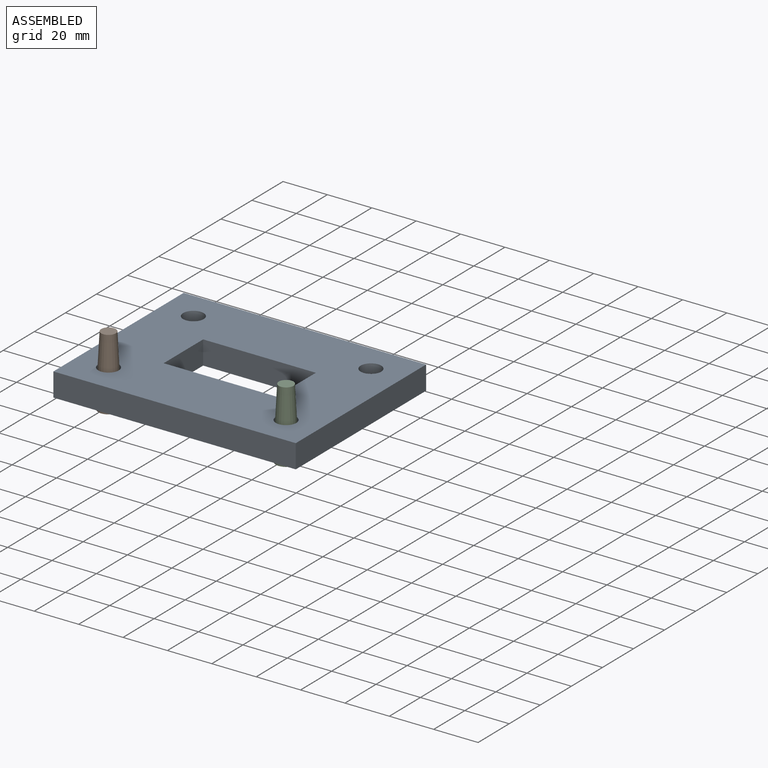
[diagram: assembled view]
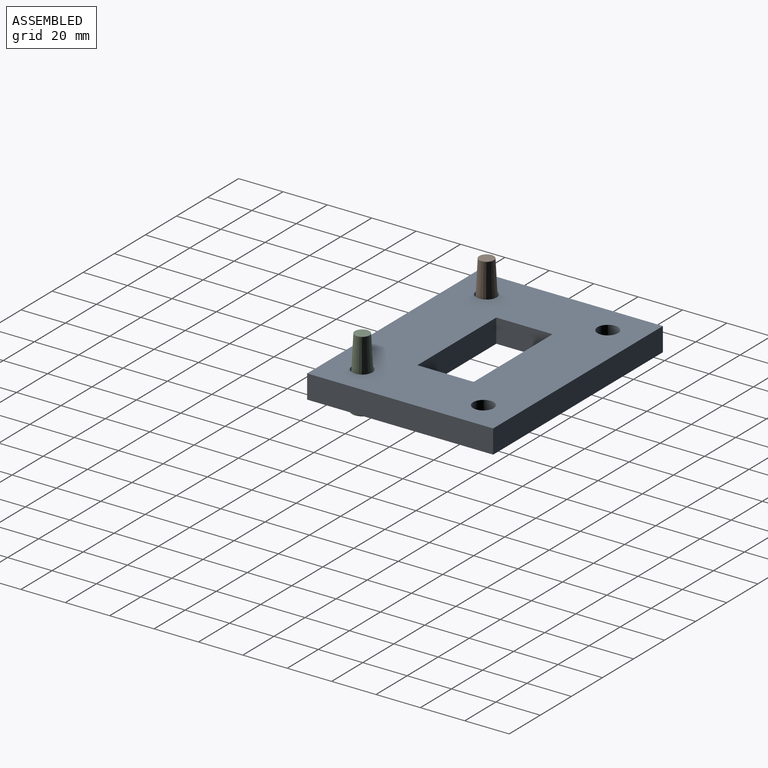
[diagram: assembled view, second angle]
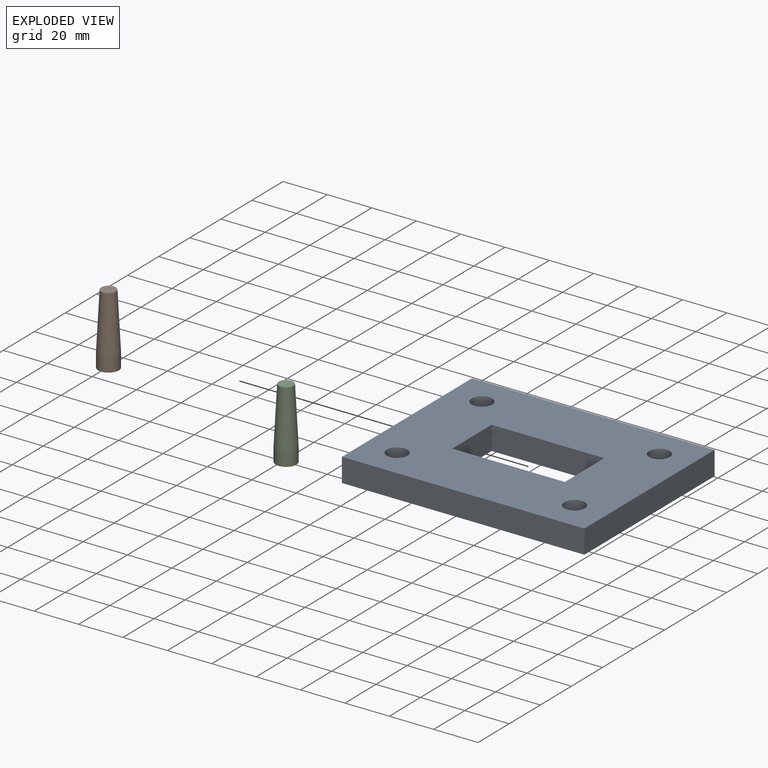
[diagram: exploded view]
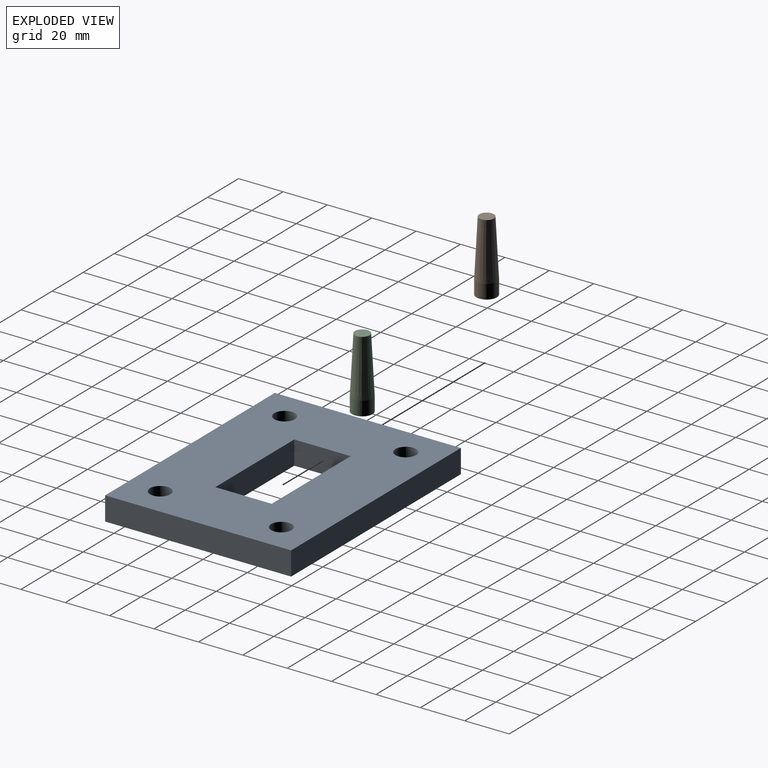
[diagram: exploded view, second angle]
ASSEMBLY  parts=3 mates=2
PART A: 14 faces, bbox 109.2x83.8x10.7 mm
  f0: plane 109.22x83.82mm, normal (0,0,1), area 7595.4mm2, adj f2,f3,f4,f5,f6,f7,f8,f9
  f1: plane 109.22x83.82mm, normal (0,0,-1), area 7595.4mm2, adj f2,f3,f4,f5,f6,f7,f8,f9
  f2: plane 83.82x10.67mm, normal (1,0,0), area 894.2mm2, adj f0,f1,f3,f9
  f3: plane 109.22x10.67mm, normal (0,1,0), area 1165.2mm2, adj f0,f1,f2,f4
  f4: plane 83.82x10.67mm, normal (-1,0,0), area 894.2mm2, adj f0,f1,f3,f9
  f5: plane 25.4x10.67mm, normal (-1,0,0), area 271mm2, adj f0,f1,f6,f8
  f6: plane 50.8x10.67mm, normal (0,1,0), area 541.9mm2, adj f0,f1,f5,f7
  f7: plane 25.4x10.67mm, normal (1,0,0), area 271mm2, adj f0,f1,f6,f8
  f8: plane 50.8x10.67mm, normal (0,-1,0), area 541.9mm2, adj f0,f1,f5,f7
  f9: plane 109.22x10.67mm, normal (0,-1,0), area 1165.2mm2, adj f0,f1,f2,f4
  f10: cylinder r=4.63mm len=10.67mm, axis (0,0,-1), area 310.2mm2, adj f0,f1
  f11: cylinder r=4.63mm len=10.67mm, axis (0,0,-1), area 310.2mm2, adj f0,f1
  f12: cylinder r=4.63mm len=10.67mm, axis (0,0,-1), area 310.2mm2, adj f0,f1
  f13: cylinder r=4.63mm len=10.67mm, axis (0,0,-1), area 310.2mm2, adj f0,f1
PART B: 4 faces, bbox 9.3x9.3x31.8 mm
  f0: cylinder r=4.63mm len=9.25mm, axis (0,0,1), area 184.6mm2, adj f1,f2
  f1: plane 9.25x9.25mm, normal (0,0,-1), area 67.3mm2, adj f0
  f2: cone r=4.63mm half-angle=3deg, axis (0,0,-1), area 633.1mm2, adj f0,f3
  f3: plane 6.59x6.59mm, normal (0,0,1), area 34.1mm2, adj f2
PART C: same geometry as B
PLACE A t=(3.9,3.81,-3)mm
PLACE B t=(-76.11,-50.8,-3)mm
PLACE C t=(3.9,-50.8,-3)mm
MATE fastened B.f0 <-> A.f12  axis (0,0,-1) through (-36.11,-23.5,-3)mm
MATE fastened C.f0 <-> A.f13  axis (0,0,-1) through (43.9,-23.5,-3)mm
